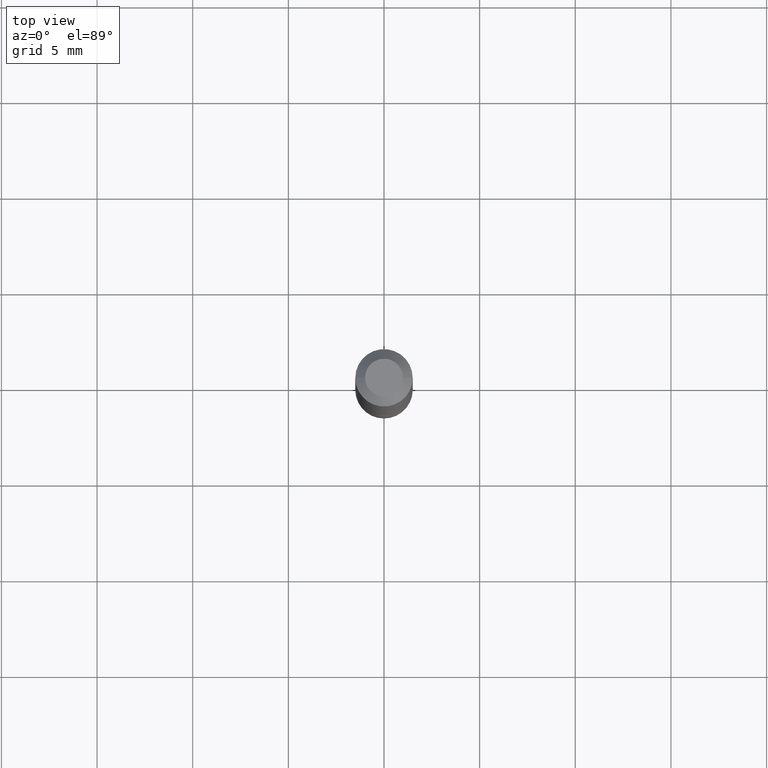
[diagram: clean part render]
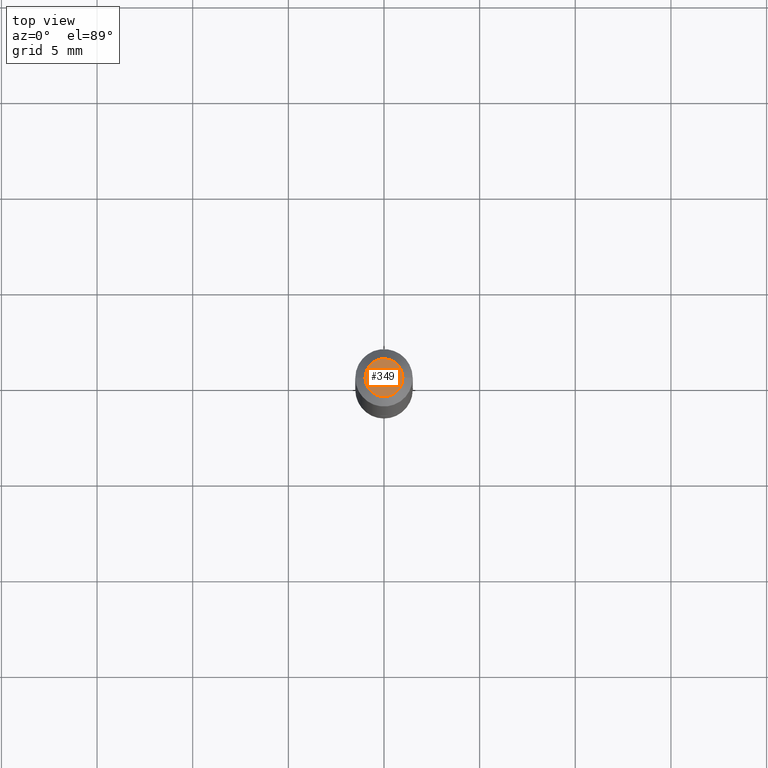
[diagram: same view with one face highlighted and labeled with its STEP entity id]
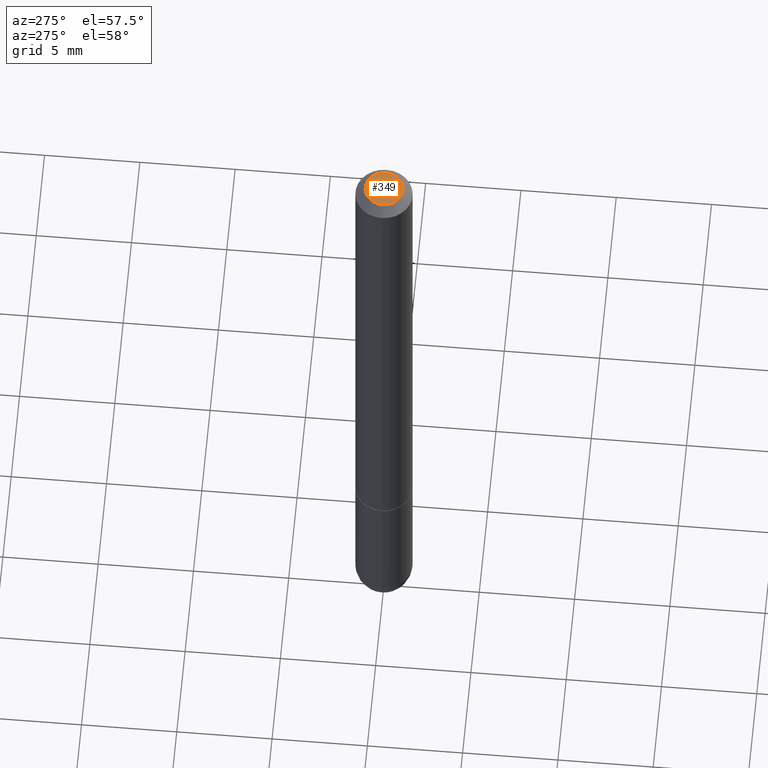
[diagram: same view with one face highlighted and labeled with its STEP entity id]
A machine part, top view. The second image highlights one B-rep face of the part: STEP entity #349.
A second angle (auxiliary view) of the same face is appended — the face is thin or edge-on in the first view.
In plain terms, the highlighted planar face has unit normal (0, -0, -1).
Its self-contained STEP definition (entity closure, byte-faithful):
#3 = CIRCLE ( 'NONE', #258, 0.03905000000000004301 ) ;
#21 = VERTEX_POINT ( 'NONE', #407 ) ;
#39 = AXIS2_PLACEMENT_3D ( 'NONE', #48, #332, #358 ) ;
#48 = CARTESIAN_POINT ( 'NONE',  ( 2.726846925636489647E-16, 0.03905000000000004301, -1.427451150169756154E-16 ) ) ;
#81 = PLANE ( 'NONE',  #39 ) ;
#95 = DIRECTION ( 'NONE',  ( 1.000000000000000000, -6.982962677686266711E-15, 4.878561691827482436E-29 ) ) ;
#131 = CARTESIAN_POINT ( 'NONE',  ( 3.131554243005667043E-46, -4.471029511141352822E-32, -1.280553747030126465E-17 ) ) ;
#142 = CARTESIAN_POINT ( 'NONE',  ( 3.131554243005667043E-46, -4.471029511141352822E-32, -1.280553747030126465E-17 ) ) ;
#165 = FACE_OUTER_BOUND ( 'NONE', #237, .T. ) ;
#176 = DIRECTION ( 'NONE',  ( 1.000000000000000000, -6.982962677686266711E-15, 4.878561691827482436E-29 ) ) ;
#190 = EDGE_CURVE ( 'NONE', #21, #391, #209, .T. ) ;
#195 = DIRECTION ( 'NONE',  ( -2.445468806185136597E-29, 3.491481338843145583E-15, 1.000000000000000000 ) ) ;
#209 = CIRCLE ( 'NONE', #356, 0.03905000000000004301 ) ;
#233 = ORIENTED_EDGE ( 'NONE', *, *, #190, .T. ) ;
#237 = EDGE_LOOP ( 'NONE', ( #301, #233 ) ) ;
#258 = AXIS2_PLACEMENT_3D ( 'NONE', #142, #268, #176 ) ;
#268 = DIRECTION ( 'NONE',  ( -2.445468806185136597E-29, 3.491481338843145583E-15, 1.000000000000000000 ) ) ;
#291 = CARTESIAN_POINT ( 'NONE',  ( -0.03905000000000004301, 3.075995059520800222E-16, -1.280553747030329227E-17 ) ) ;
#301 = ORIENTED_EDGE ( 'NONE', *, *, #395, .T. ) ;
#332 = DIRECTION ( 'NONE',  ( 2.438088387897960049E-29, -3.491481338843145188E-15, -1.000000000000000000 ) ) ;
#349 = ADVANCED_FACE ( 'NONE', ( #165 ), #81, .F. ) ;
#356 = AXIS2_PLACEMENT_3D ( 'NONE', #131, #195, #95 ) ;
#358 = DIRECTION ( 'NONE',  ( -1.000000000000000000, 6.982962677686265922E-15, -4.876176775795935793E-29 ) ) ;
#391 = VERTEX_POINT ( 'NONE', #291 ) ;
#395 = EDGE_CURVE ( 'NONE', #391, #21, #3, .T. ) ;
#407 = CARTESIAN_POINT ( 'NONE',  ( 0.03905000000000004301, -3.714222401791252845E-16, -1.280553747029901208E-17 ) ) ;